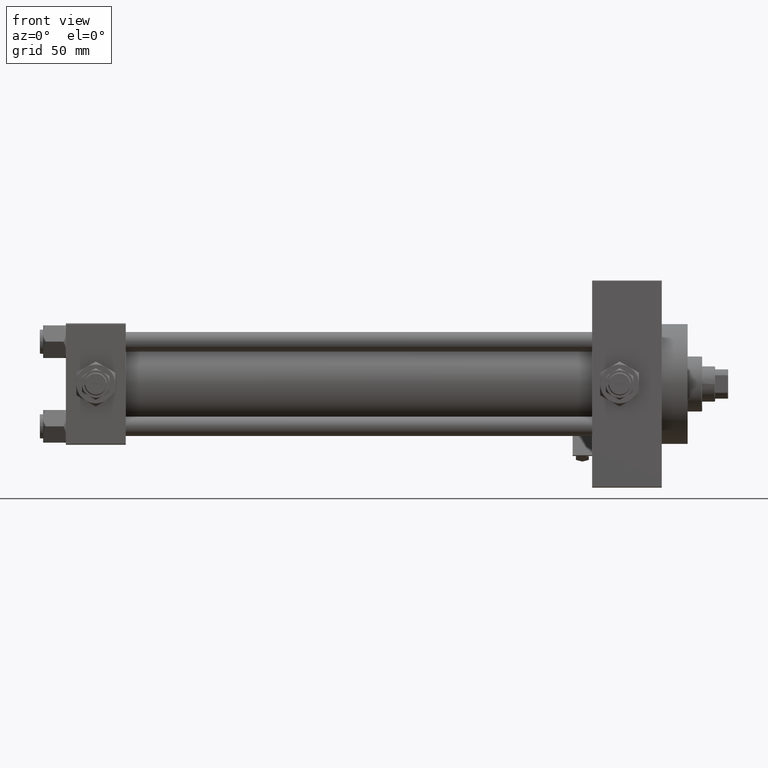
[diagram: clean part render]
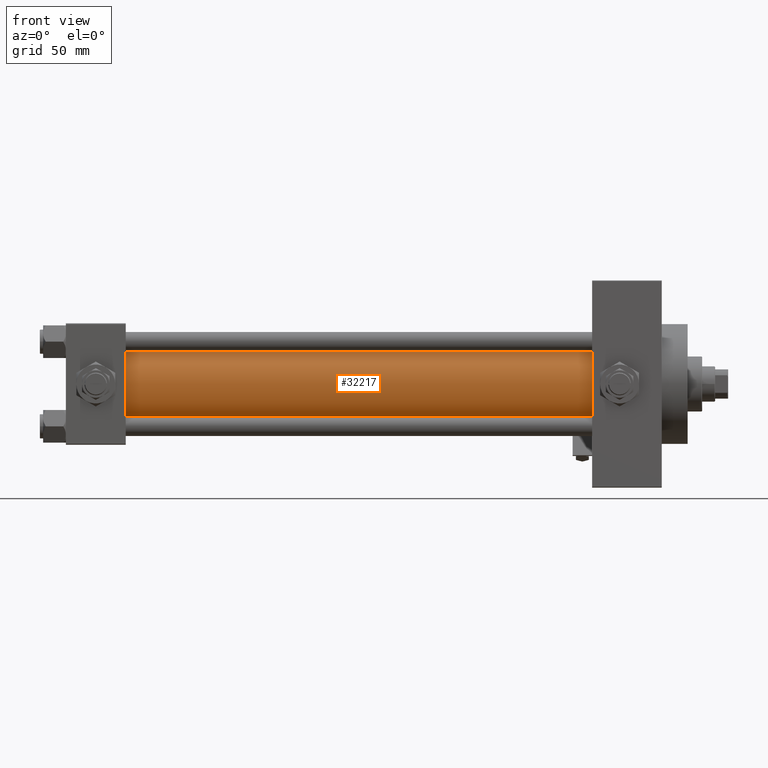
[diagram: same view with one face highlighted and labeled with its STEP entity id]
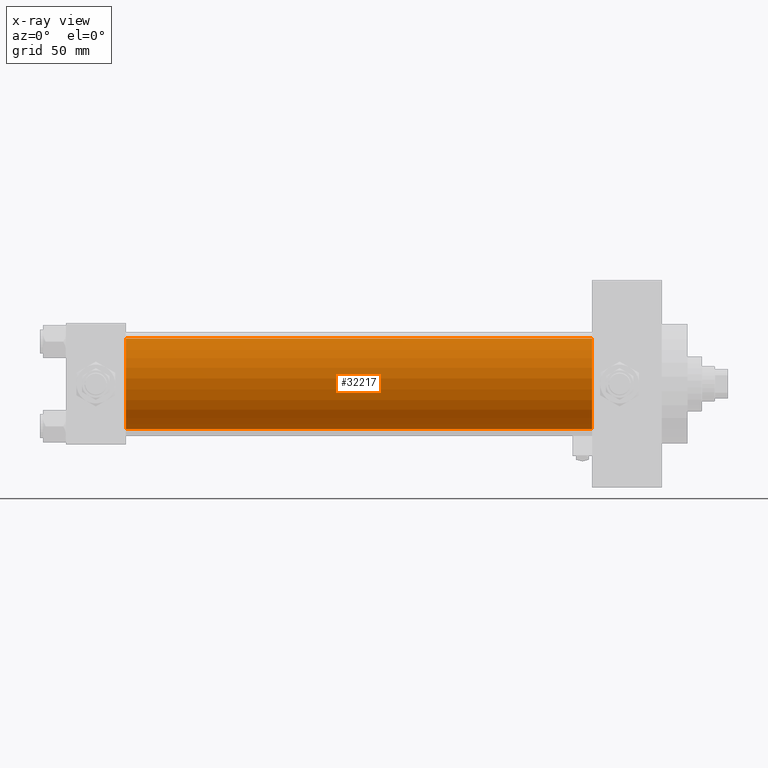
[diagram: x-ray of the same camera — body ghosted, the highlighted face saturated]
A machine part, front view. The second image highlights one B-rep face of the part: STEP entity #32217.
The next image is the same camera in x-ray: the body ghosted, the highlighted face saturated — about 0% of this face is hidden behind the body in this view.
In plain terms, the highlighted cylindrical surface (partial cylindrical patch) has radius 28 mm, axis along (-1, -0, -0).
Its self-contained STEP definition (entity closure, byte-faithful):
#233 = ORIENTED_EDGE ( 'NONE', *, *, #12388, .T. ) ;
#513 = FACE_OUTER_BOUND ( 'NONE', #24296, .T. ) ;
#887 = VERTEX_POINT ( 'NONE', #24371 ) ;
#1956 = ORIENTED_EDGE ( 'NONE', *, *, #9195, .F. ) ;
#2416 = LINE ( 'NONE', #27088, #26112 ) ;
#4337 = DIRECTION ( 'NONE',  ( -1.000000000000000000, -0.000000000000000000, -0.000000000000000000 ) ) ;
#4789 = VERTEX_POINT ( 'NONE', #11423 ) ;
#5436 = DIRECTION ( 'NONE',  ( 1.000000000000000000, 0.000000000000000000, 0.000000000000000000 ) ) ;
#6337 = CARTESIAN_POINT ( 'NONE',  ( 36.99999999999997868, -2.602085213965210642E-15, 0.000000000000000000 ) ) ;
#6428 = LINE ( 'NONE', #42285, #41204 ) ;
#7449 = DIRECTION ( 'NONE',  ( -1.000000000000000000, -0.000000000000000000, -0.000000000000000000 ) ) ;
#8528 = CARTESIAN_POINT ( 'NONE',  ( 324.9999999999999432, -2.602085213965210642E-15, 0.000000000000000000 ) ) ;
#9195 = EDGE_CURVE ( 'NONE', #887, #4789, #28265, .T. ) ;
#11423 = CARTESIAN_POINT ( 'NONE',  ( 324.9999999999999432, 8.269258236473784371E-16, -28.00000000000000000 ) ) ;
#11793 = ORIENTED_EDGE ( 'NONE', *, *, #28949, .T. ) ;
#12342 = DIRECTION ( 'NONE',  ( 0.000000000000000000, 0.000000000000000000, -1.000000000000000000 ) ) ;
#12388 = EDGE_CURVE ( 'NONE', #887, #47829, #6428, .T. ) ;
#12893 = CARTESIAN_POINT ( 'NONE',  ( 36.99999999999997868, 8.269258236473784371E-16, -28.00000000000000000 ) ) ;
#14474 = DIRECTION ( 'NONE',  ( 0.000000000000000000, 0.000000000000000000, 1.000000000000000000 ) ) ;
#15292 = CARTESIAN_POINT ( 'NONE',  ( 324.9999999999999432, -2.602085213965210642E-15, 0.000000000000000000 ) ) ;
#16444 = AXIS2_PLACEMENT_3D ( 'NONE', #15292, #4337, #42500 ) ;
#18036 = ORIENTED_EDGE ( 'NONE', *, *, #24325, .F. ) ;
#19212 = DIRECTION ( 'NONE',  ( -1.000000000000000000, -0.000000000000000000, -0.000000000000000000 ) ) ;
#23401 = CARTESIAN_POINT ( 'NONE',  ( 36.99999999999997868, -2.602085213965210642E-15, 28.00000000000000000 ) ) ;
#24296 = EDGE_LOOP ( 'NONE', ( #18036, #1956, #233, #11793 ) ) ;
#24325 = EDGE_CURVE ( 'NONE', #4789, #42228, #2416, .T. ) ;
#24371 = CARTESIAN_POINT ( 'NONE',  ( 324.9999999999999432, -2.602085213965210642E-15, 28.00000000000000000 ) ) ;
#26112 = VECTOR ( 'NONE', #19212, 1000.000000000000000 ) ;
#27088 = CARTESIAN_POINT ( 'NONE',  ( 324.9999999999999432, 8.269258236473784371E-16, -28.00000000000000000 ) ) ;
#27488 = CYLINDRICAL_SURFACE ( 'NONE', #16444, 28.00000000000000000 ) ;
#28265 = CIRCLE ( 'NONE', #29863, 28.00000000000000000 ) ;
#28949 = EDGE_CURVE ( 'NONE', #47829, #42228, #46715, .T. ) ;
#29863 = AXIS2_PLACEMENT_3D ( 'NONE', #8528, #5436, #12342 ) ;
#32217 = ADVANCED_FACE ( 'NONE', ( #513 ), #27488, .T. ) ;
#35348 = AXIS2_PLACEMENT_3D ( 'NONE', #6337, #41168, #14474 ) ;
#41168 = DIRECTION ( 'NONE',  ( 1.000000000000000000, -0.000000000000000000, 0.000000000000000000 ) ) ;
#41204 = VECTOR ( 'NONE', #7449, 1000.000000000000000 ) ;
#42228 = VERTEX_POINT ( 'NONE', #12893 ) ;
#42285 = CARTESIAN_POINT ( 'NONE',  ( 324.9999999999999432, -2.602085213965210642E-15, 28.00000000000000000 ) ) ;
#42500 = DIRECTION ( 'NONE',  ( 0.000000000000000000, 0.000000000000000000, 1.000000000000000000 ) ) ;
#46715 = CIRCLE ( 'NONE', #35348, 28.00000000000000000 ) ;
#47829 = VERTEX_POINT ( 'NONE', #23401 ) ;